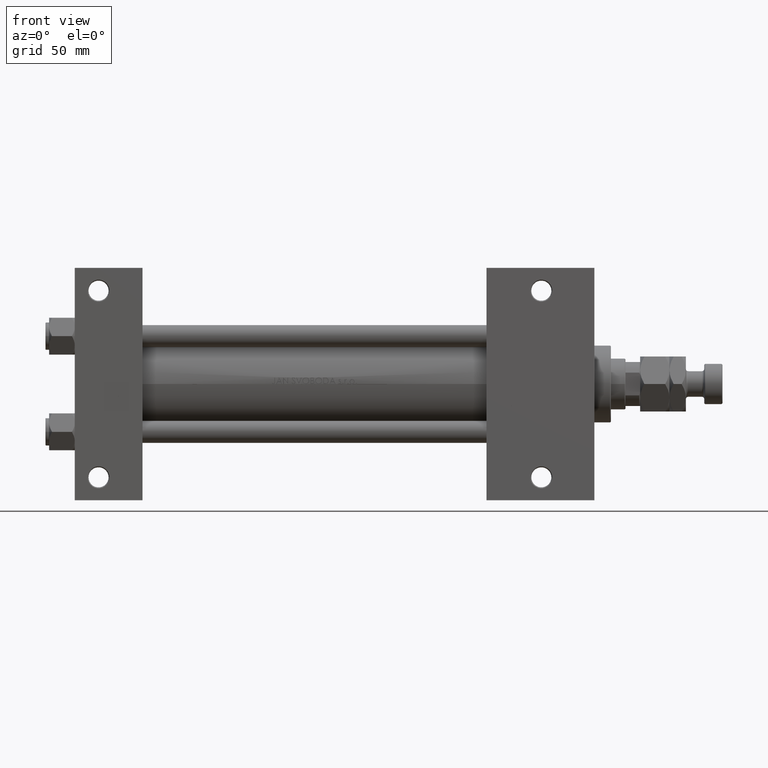
[diagram: clean part render]
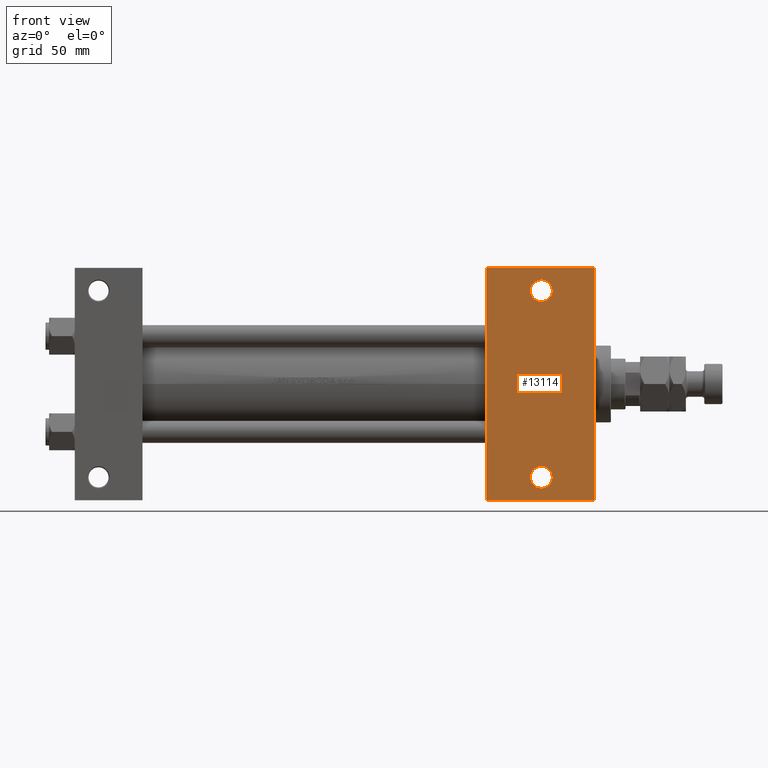
[diagram: same view with one face highlighted and labeled with its STEP entity id]
A machine part, front view. The second image highlights one B-rep face of the part: STEP entity #13114.
In plain terms, the highlighted planar face has unit normal (0, -1, 0).
Its self-contained STEP definition (entity closure, byte-faithful):
#159 = LINE ( 'NONE', #31398, #24980 ) ;
#2247 = CIRCLE ( 'NONE', #16972, 5.999499999999990507 ) ;
#2269 = DIRECTION ( 'NONE',  ( -1.000000000000000000, 0.000000000000000000, 0.000000000000000000 ) ) ;
#2528 = DIRECTION ( 'NONE',  ( -0.000000000000000000, -0.000000000000000000, 1.000000000000000000 ) ) ;
#5034 = CARTESIAN_POINT ( 'NONE',  ( 284.0000000000000568, 63.49999999999997158, -37.50000000000000000 ) ) ;
#5447 = AXIS2_PLACEMENT_3D ( 'NONE', #10124, #33955, #18311 ) ;
#5983 = ORIENTED_EDGE ( 'NONE', *, *, #17053, .T. ) ;
#6600 = DIRECTION ( 'NONE',  ( -1.000000000000000000, 0.000000000000000000, 0.000000000000000000 ) ) ;
#7916 = CIRCLE ( 'NONE', #37365, 5.999499999999990507 ) ;
#8637 = ORIENTED_EDGE ( 'NONE', *, *, #49316, .T. ) ;
#8665 = CARTESIAN_POINT ( 'NONE',  ( 249.0005000000000166, -51.00000000000000000, -37.50000000000000000 ) ) ;
#10124 = CARTESIAN_POINT ( 'NONE',  ( 284.0000000000000568, 37.50000000000000000, -37.50000000000000000 ) ) ;
#10595 = VERTEX_POINT ( 'NONE', #15914 ) ;
#10640 = PLANE ( 'NONE',  #5447 ) ;
#11034 = DIRECTION ( 'NONE',  ( 0.000000000000000000, -1.000000000000000000, 0.000000000000000000 ) ) ;
#11786 = LINE ( 'NONE', #15106, #20242 ) ;
#11853 = CARTESIAN_POINT ( 'NONE',  ( 255.0000000000000000, 51.00000000000000000, -37.50000000000000000 ) ) ;
#11876 = VERTEX_POINT ( 'NONE', #31701 ) ;
#12947 = VECTOR ( 'NONE', #45908, 1000.000000000000000 ) ;
#12988 = AXIS2_PLACEMENT_3D ( 'NONE', #22491, #2528, #38140 ) ;
#13114 = ADVANCED_FACE ( 'NONE', ( #13956, #45245, #38312 ), #10640, .T. ) ;
#13956 = FACE_BOUND ( 'NONE', #34626, .T. ) ;
#15106 = CARTESIAN_POINT ( 'NONE',  ( 225.0000000000000000, 37.50000000000000000, -37.50000000000000000 ) ) ;
#15583 = VERTEX_POINT ( 'NONE', #5034 ) ;
#15690 = EDGE_LOOP ( 'NONE', ( #8637, #41165 ) ) ;
#15914 = CARTESIAN_POINT ( 'NONE',  ( 260.9995000000000118, -51.00000000000000000, -37.50000000000000000 ) ) ;
#16060 = EDGE_CURVE ( 'NONE', #31867, #23666, #11786, .T. ) ;
#16972 = AXIS2_PLACEMENT_3D ( 'NONE', #46086, #25563, #2269 ) ;
#17053 = EDGE_CURVE ( 'NONE', #31867, #15583, #37435, .T. ) ;
#17474 = EDGE_CURVE ( 'NONE', #10595, #27260, #50655, .T. ) ;
#18311 = DIRECTION ( 'NONE',  ( -1.000000000000000000, 0.000000000000000000, -0.000000000000000000 ) ) ;
#18529 = DIRECTION ( 'NONE',  ( -1.000000000000000000, 0.000000000000000000, 0.000000000000000000 ) ) ;
#19860 = VECTOR ( 'NONE', #28639, 1000.000000000000000 ) ;
#20192 = CARTESIAN_POINT ( 'NONE',  ( 225.0000000000000000, -63.50000000000002842, -37.50000000000000000 ) ) ;
#20242 = VECTOR ( 'NONE', #11034, 1000.000000000000000 ) ;
#21606 = ORIENTED_EDGE ( 'NONE', *, *, #16060, .F. ) ;
#22491 = CARTESIAN_POINT ( 'NONE',  ( 255.0000000000000000, -51.00000000000000000, -37.50000000000000000 ) ) ;
#23666 = VERTEX_POINT ( 'NONE', #20192 ) ;
#24211 = EDGE_LOOP ( 'NONE', ( #21606, #5983, #32911, #44415 ) ) ;
#24980 = VECTOR ( 'NONE', #27552, 1000.000000000000000 ) ;
#25563 = DIRECTION ( 'NONE',  ( -0.000000000000000000, -0.000000000000000000, 1.000000000000000000 ) ) ;
#26970 = VERTEX_POINT ( 'NONE', #47689 ) ;
#27260 = VERTEX_POINT ( 'NONE', #8665 ) ;
#27552 = DIRECTION ( 'NONE',  ( -1.000000000000000000, -0.000000000000000000, -0.000000000000000000 ) ) ;
#28639 = DIRECTION ( 'NONE',  ( 0.000000000000000000, -1.000000000000000000, 0.000000000000000000 ) ) ;
#29232 = CARTESIAN_POINT ( 'NONE',  ( 284.0000000000000568, -63.50000000000002842, -37.50000000000000000 ) ) ;
#30741 = CARTESIAN_POINT ( 'NONE',  ( 225.0000000000000284, 63.50000000000000000, -37.50000000000000000 ) ) ;
#31398 = CARTESIAN_POINT ( 'NONE',  ( 225.0000000000000000, -63.50000000000002842, -37.50000000000000000 ) ) ;
#31698 = AXIS2_PLACEMENT_3D ( 'NONE', #11853, #45971, #18529 ) ;
#31701 = CARTESIAN_POINT ( 'NONE',  ( 249.0005000000000166, 51.00000000000000000, -37.50000000000000000 ) ) ;
#31867 = VERTEX_POINT ( 'NONE', #37268 ) ;
#32911 = ORIENTED_EDGE ( 'NONE', *, *, #36091, .T. ) ;
#33755 = CARTESIAN_POINT ( 'NONE',  ( 255.0000000000000000, 51.00000000000000000, -37.50000000000000000 ) ) ;
#33955 = DIRECTION ( 'NONE',  ( 0.000000000000000000, 0.000000000000000000, -1.000000000000000000 ) ) ;
#34626 = EDGE_LOOP ( 'NONE', ( #44959, #45039 ) ) ;
#36091 = EDGE_CURVE ( 'NONE', #15583, #38337, #44555, .T. ) ;
#37268 = CARTESIAN_POINT ( 'NONE',  ( 225.0000000000000284, 63.50000000000000000, -37.50000000000000000 ) ) ;
#37365 = AXIS2_PLACEMENT_3D ( 'NONE', #33755, #49407, #6600 ) ;
#37435 = LINE ( 'NONE', #30741, #12947 ) ;
#38140 = DIRECTION ( 'NONE',  ( -1.000000000000000000, 0.000000000000000000, 0.000000000000000000 ) ) ;
#38312 = FACE_OUTER_BOUND ( 'NONE', #24211, .T. ) ;
#38337 = VERTEX_POINT ( 'NONE', #29232 ) ;
#41165 = ORIENTED_EDGE ( 'NONE', *, *, #17474, .T. ) ;
#44036 = CARTESIAN_POINT ( 'NONE',  ( 284.0000000000000568, 37.50000000000000000, -37.50000000000000000 ) ) ;
#44415 = ORIENTED_EDGE ( 'NONE', *, *, #45476, .T. ) ;
#44555 = LINE ( 'NONE', #44036, #19860 ) ;
#44959 = ORIENTED_EDGE ( 'NONE', *, *, #47712, .T. ) ;
#45039 = ORIENTED_EDGE ( 'NONE', *, *, #50175, .T. ) ;
#45245 = FACE_BOUND ( 'NONE', #15690, .T. ) ;
#45476 = EDGE_CURVE ( 'NONE', #38337, #23666, #159, .T. ) ;
#45680 = CIRCLE ( 'NONE', #31698, 5.999499999999990507 ) ;
#45908 = DIRECTION ( 'NONE',  ( 1.000000000000000000, -4.704334850106595794E-16, 0.000000000000000000 ) ) ;
#45971 = DIRECTION ( 'NONE',  ( -0.000000000000000000, -0.000000000000000000, 1.000000000000000000 ) ) ;
#46086 = CARTESIAN_POINT ( 'NONE',  ( 255.0000000000000000, -51.00000000000000000, -37.50000000000000000 ) ) ;
#47689 = CARTESIAN_POINT ( 'NONE',  ( 260.9995000000000118, 51.00000000000000000, -37.50000000000000000 ) ) ;
#47712 = EDGE_CURVE ( 'NONE', #11876, #26970, #7916, .T. ) ;
#49316 = EDGE_CURVE ( 'NONE', #27260, #10595, #2247, .T. ) ;
#49407 = DIRECTION ( 'NONE',  ( -0.000000000000000000, -0.000000000000000000, 1.000000000000000000 ) ) ;
#50175 = EDGE_CURVE ( 'NONE', #26970, #11876, #45680, .T. ) ;
#50655 = CIRCLE ( 'NONE', #12988, 5.999499999999990507 ) ;